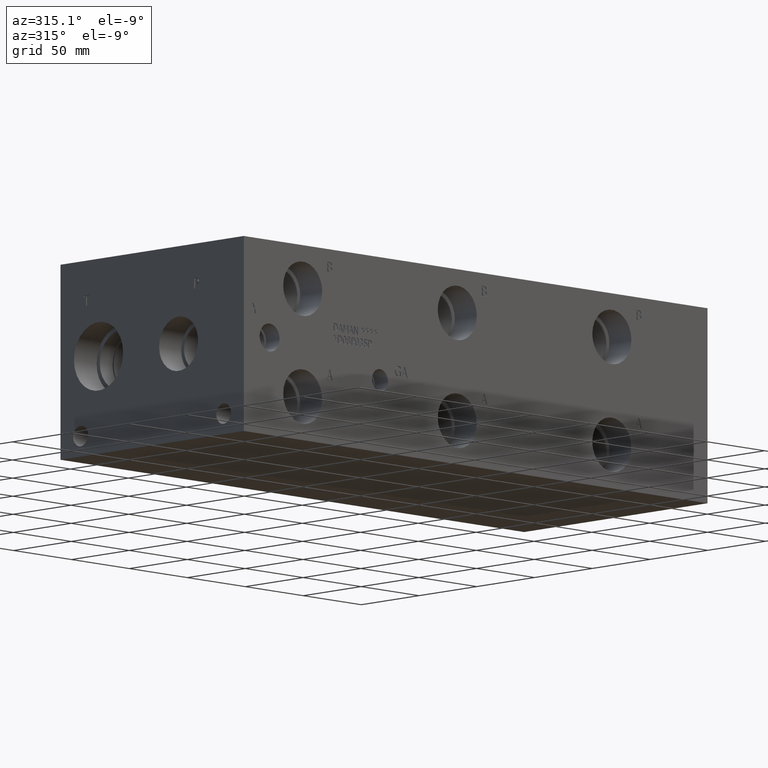
[diagram: clean part render]
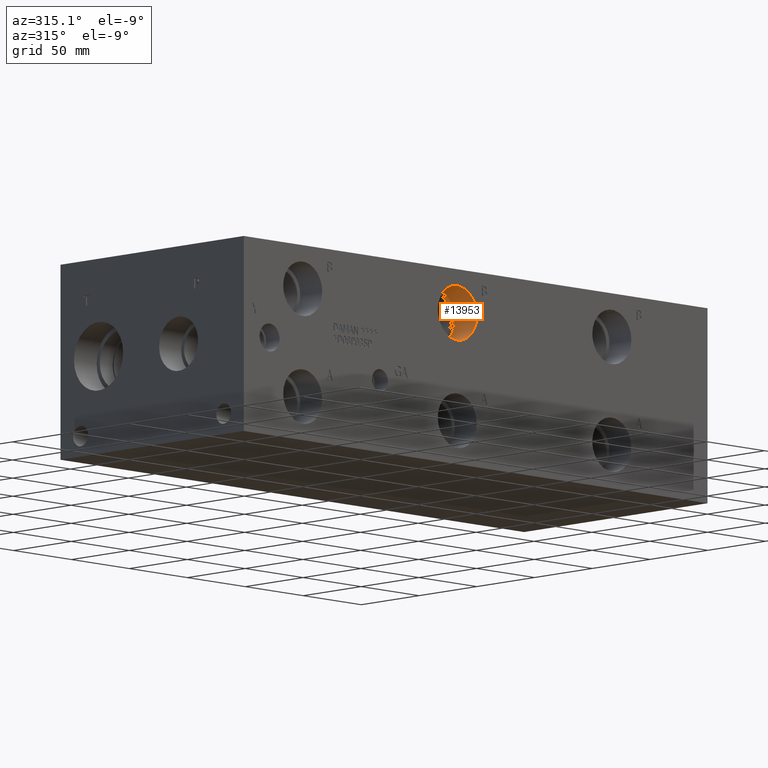
[diagram: same view with one face highlighted and labeled with its STEP entity id]
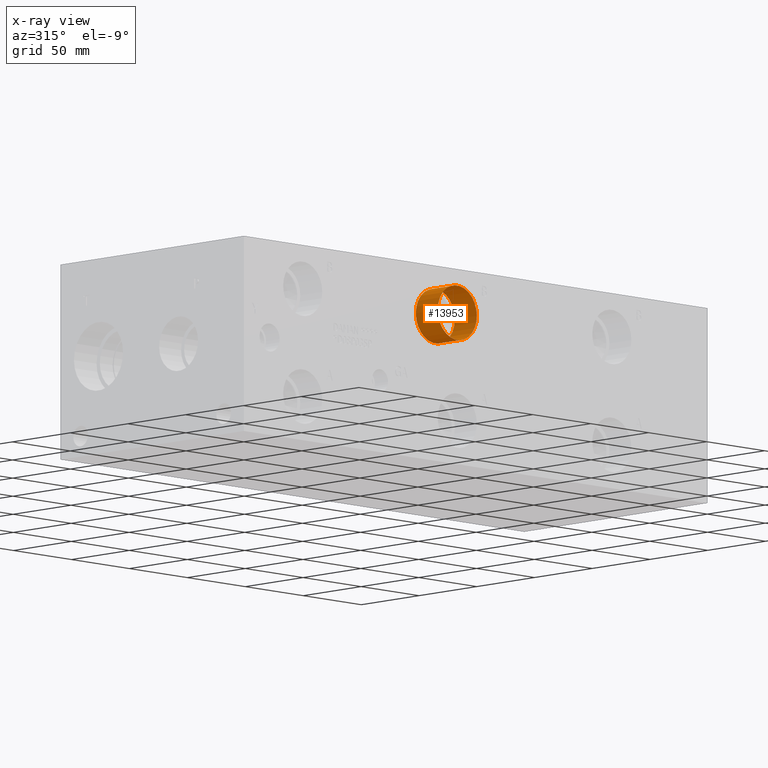
[diagram: x-ray of the same camera — body ghosted, the highlighted face saturated]
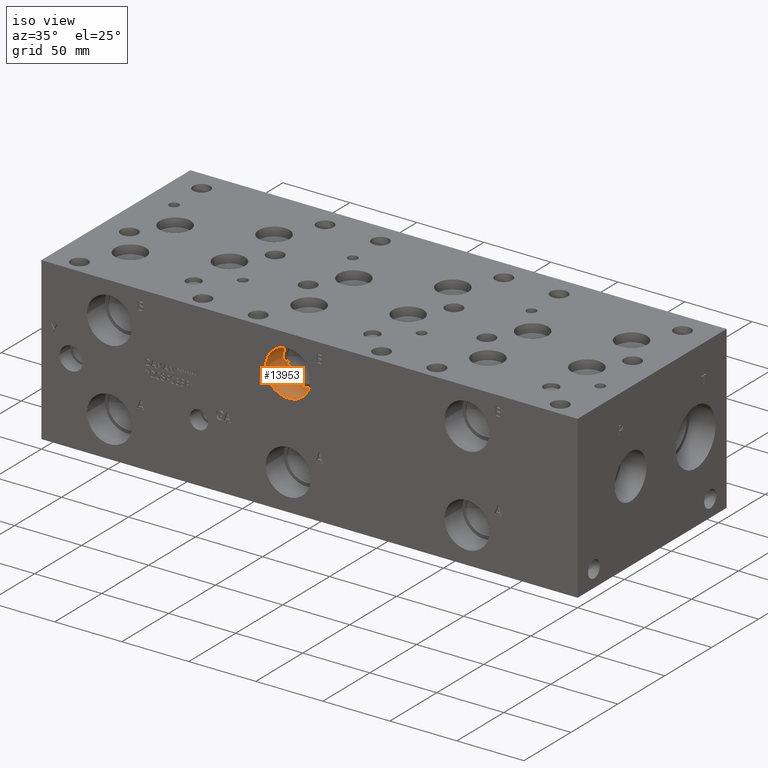
[diagram: same view with one face highlighted and labeled with its STEP entity id]
A machine part, auxiliary view. The second image highlights one B-rep face of the part: STEP entity #13953.
The next image is the same camera in x-ray: the body ghosted, the highlighted face saturated — about 0% of this face is hidden behind the body in this view.
A second angle (iso view) of the same face is appended — the face is thin or edge-on in the first view.
In plain terms, the highlighted cylindrical surface (bore or boss wall) has radius 16.8529 mm, axis along (0, -1, 0).
Its self-contained STEP definition (entity closure, byte-faithful):
#42=CYLINDRICAL_SURFACE('',#14626,16.8529);
#351=CIRCLE('',#14120,16.8529);
#352=CIRCLE('',#14121,16.8529);
#454=CIRCLE('',#14623,16.8529);
#455=CIRCLE('',#14624,16.8529);
#1771=FACE_OUTER_BOUND('',#2578,.T.);
#2578=EDGE_LOOP('',(#11745,#11746,#11747,#11748,#11749,#11750));
#3914=LINE('',#23623,#5163);
#5163=VECTOR('',#17177,16.8529);
#5459=VERTEX_POINT('',#18639);
#5460=VERTEX_POINT('',#18640);
#6364=VERTEX_POINT('',#23616);
#6365=VERTEX_POINT('',#23617);
#6829=EDGE_CURVE('',#5459,#5460,#351,.T.);
#6830=EDGE_CURVE('',#5460,#5459,#352,.T.);
#8238=EDGE_CURVE('',#6364,#6365,#454,.T.);
#8239=EDGE_CURVE('',#6365,#6364,#455,.T.);
#8241=EDGE_CURVE('',#5460,#6365,#3914,.T.);
#11745=ORIENTED_EDGE('',*,*,#6829,.F.);
#11746=ORIENTED_EDGE('',*,*,#6830,.F.);
#11747=ORIENTED_EDGE('',*,*,#8241,.T.);
#11748=ORIENTED_EDGE('',*,*,#8238,.F.);
#11749=ORIENTED_EDGE('',*,*,#8239,.F.);
#11750=ORIENTED_EDGE('',*,*,#8241,.F.);
#13953=ADVANCED_FACE('',(#1771),#42,.F.);
#14120=AXIS2_PLACEMENT_3D('',#18641,#15134,#15135);
#14121=AXIS2_PLACEMENT_3D('',#18642,#15136,#15137);
#14623=AXIS2_PLACEMENT_3D('',#23618,#17169,#17170);
#14624=AXIS2_PLACEMENT_3D('',#23619,#17171,#17172);
#14626=AXIS2_PLACEMENT_3D('',#23622,#17175,#17176);
#15134=DIRECTION('center_axis',(0.,1.,0.));
#15135=DIRECTION('ref_axis',(1.,0.,0.));
#15136=DIRECTION('center_axis',(0.,1.,0.));
#15137=DIRECTION('ref_axis',(1.,0.,0.));
#17169=DIRECTION('center_axis',(0.,-1.,0.));
#17170=DIRECTION('ref_axis',(1.,0.,0.));
#17171=DIRECTION('center_axis',(0.,-1.,0.));
#17172=DIRECTION('ref_axis',(1.,0.,0.));
#17175=DIRECTION('center_axis',(0.,-1.,0.));
#17176=DIRECTION('ref_axis',(1.,0.,0.));
#17177=DIRECTION('',(0.,1.,0.));
#18639=CARTESIAN_POINT('',(201.0029,0.,93.6752));
#18640=CARTESIAN_POINT('',(167.2971,0.,93.6752));
#18641=CARTESIAN_POINT('Origin',(184.15,0.,93.6752));
#18642=CARTESIAN_POINT('Origin',(184.15,0.,93.6752));
#23616=CARTESIAN_POINT('',(201.0029,18.9992,93.6752));
#23617=CARTESIAN_POINT('',(167.2971,18.9992,93.6752));
#23618=CARTESIAN_POINT('Origin',(184.15,18.9992,93.6752));
#23619=CARTESIAN_POINT('Origin',(184.15,18.9992,93.6752));
#23622=CARTESIAN_POINT('Origin',(184.15,9.4996,93.6752));
#23623=CARTESIAN_POINT('',(167.2971,9.4996,93.6752));